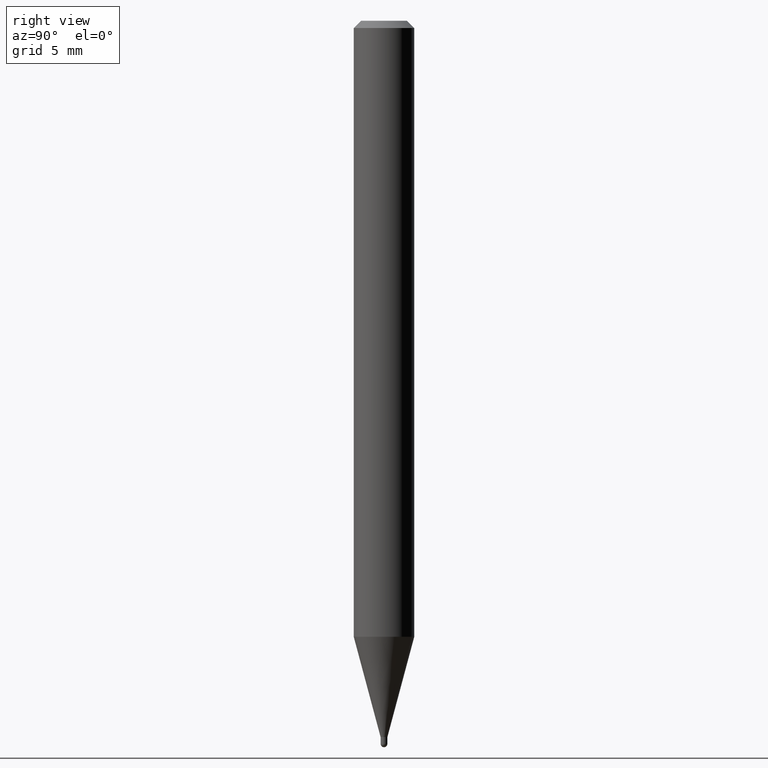
[diagram: clean part render]
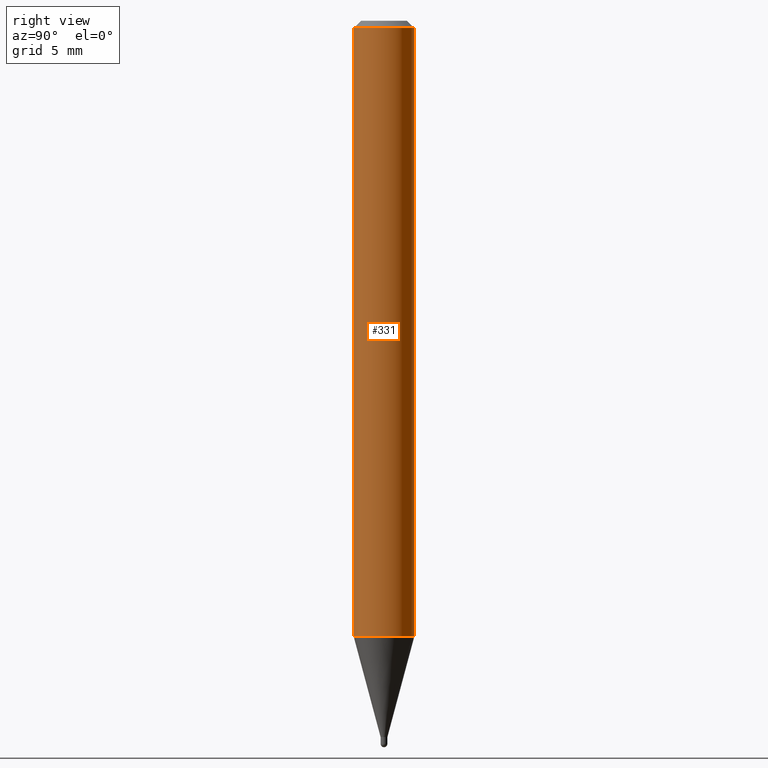
[diagram: same view with one face highlighted and labeled with its STEP entity id]
A machine part, right view. The second image highlights one B-rep face of the part: STEP entity #331.
In plain terms, the highlighted cylindrical surface (edge-blend (fillet) strip) has radius 1.5875 mm, axis along (-0, 0, 1).
Its self-contained STEP definition (entity closure, byte-faithful):
#6 = CYLINDRICAL_SURFACE ( 'NONE', #239, 0.06250000000000000000 ) ;
#16 = CARTESIAN_POINT ( 'NONE',  ( -4.364351673553606080E-16, -0.06250000000000445477, -1.271871180179934280 ) ) ;
#29 = LINE ( 'NONE', #117, #110 ) ;
#40 = VERTEX_POINT ( 'NONE', #16 ) ;
#46 = DIRECTION ( 'NONE',  ( -2.445484019338910371E-29, 3.491459552741062700E-15, 1.000000000000000000 ) ) ;
#66 = EDGE_CURVE ( 'NONE', #330, #90, #137, .T. ) ;
#79 = DIRECTION ( 'NONE',  ( -6.982962677686265922E-15, -1.000000000000000000, 3.491459552741062700E-15 ) ) ;
#89 = EDGE_CURVE ( 'NONE', #40, #330, #303, .T. ) ;
#90 = VERTEX_POINT ( 'NONE', #411 ) ;
#110 = VECTOR ( 'NONE', #420, 39.37007874015748143 ) ;
#117 = CARTESIAN_POINT ( 'NONE',  ( -4.364351673553916201E-16, -0.06250000000000000000, 2.182162220463164187E-16 ) ) ;
#123 = VERTEX_POINT ( 'NONE', #458 ) ;
#125 = DIRECTION ( 'NONE',  ( -2.445484019338910371E-29, 3.491459552741062700E-15, 1.000000000000000000 ) ) ;
#128 = ORIENTED_EDGE ( 'NONE', *, *, #89, .T. ) ;
#133 = ORIENTED_EDGE ( 'NONE', *, *, #403, .F. ) ;
#137 = LINE ( 'NONE', #343, #143 ) ;
#142 = ORIENTED_EDGE ( 'NONE', *, *, #66, .T. ) ;
#143 = VECTOR ( 'NONE', #335, 39.37007874015748143 ) ;
#144 = CARTESIAN_POINT ( 'NONE',  ( 3.110340645787750405E-29, -4.440686781895283064E-15, -1.271871180179934724 ) ) ;
#208 = EDGE_CURVE ( 'NONE', #40, #123, #29, .T. ) ;
#223 = DIRECTION ( 'NONE',  ( -6.982962677686265922E-15, -1.000000000000000000, 4.370956789862821150E-15 ) ) ;
#239 = AXIS2_PLACEMENT_3D ( 'NONE', #281, #125, #79 ) ;
#255 = ORIENTED_EDGE ( 'NONE', *, *, #208, .F. ) ;
#281 = CARTESIAN_POINT ( 'NONE',  ( 0.000000000000000000, 0.000000000000000000, 0.000000000000000000 ) ) ;
#303 = CIRCLE ( 'NONE', #427, 0.06250000000000000000 ) ;
#330 = VERTEX_POINT ( 'NONE', #402 ) ;
#331 = ADVANCED_FACE ( 'NONE', ( #431 ), #6, .T. ) ;
#335 = DIRECTION ( 'NONE',  ( -2.445484019338910651E-29, 3.491459552741062700E-15, 1.000000000000000000 ) ) ;
#343 = CARTESIAN_POINT ( 'NONE',  ( 4.440892098500625669E-16, 0.06250000000000000000, -2.182162220463164187E-16 ) ) ;
#402 = CARTESIAN_POINT ( 'NONE',  ( 4.440892098500935790E-16, 0.06249999999999555911, -1.271871180179934946 ) ) ;
#403 = EDGE_CURVE ( 'NONE', #123, #90, #444, .T. ) ;
#411 = CARTESIAN_POINT ( 'NONE',  ( 4.440892098500938748E-16, 0.06249999999999995143, -0.01500000000000028394 ) ) ;
#413 = DIRECTION ( 'NONE',  ( -2.445484019338910371E-29, 3.491459552741062700E-15, 1.000000000000000000 ) ) ;
#415 = AXIS2_PLACEMENT_3D ( 'NONE', #432, #46, #481 ) ;
#418 = EDGE_LOOP ( 'NONE', ( #128, #142, #133, #255 ) ) ;
#420 = DIRECTION ( 'NONE',  ( -2.445484019338910651E-29, 3.491459552741062700E-15, 1.000000000000000000 ) ) ;
#427 = AXIS2_PLACEMENT_3D ( 'NONE', #144, #413, #223 ) ;
#431 = FACE_OUTER_BOUND ( 'NONE', #418, .T. ) ;
#432 = CARTESIAN_POINT ( 'NONE',  ( 3.668226029008381619E-31, -5.237189329111617148E-17, -0.01500000000000006710 ) ) ;
#444 = CIRCLE ( 'NONE', #415, 0.06250000000000000000 ) ;
#458 = CARTESIAN_POINT ( 'NONE',  ( -4.364351673553912750E-16, -0.06250000000000005551, -0.01499999999999984852 ) ) ;
#481 = DIRECTION ( 'NONE',  ( -6.982962677686265922E-15, -1.000000000000000000, 3.483106191921935554E-15 ) ) ;